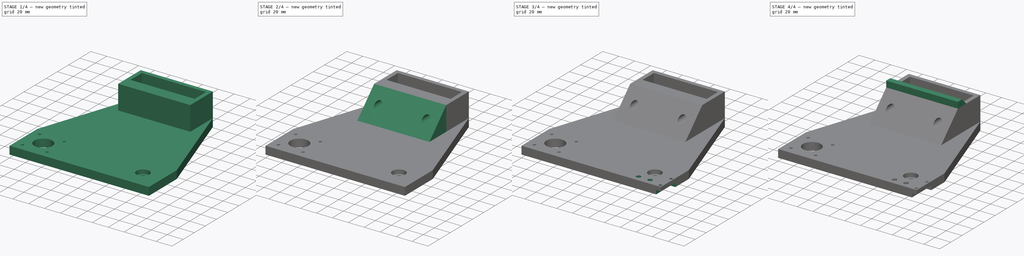
[diagram: build sequence overview — one tinted view per stage of 4, left to right]
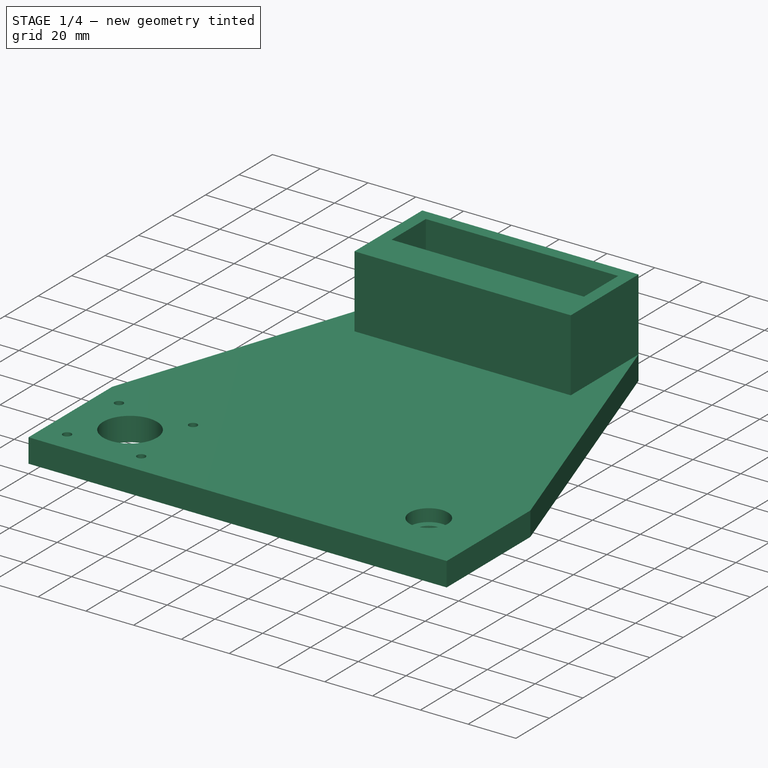
[diagram: stage 1 of 4 — iso view after this stage's code; geometry added in this stage tinted green]
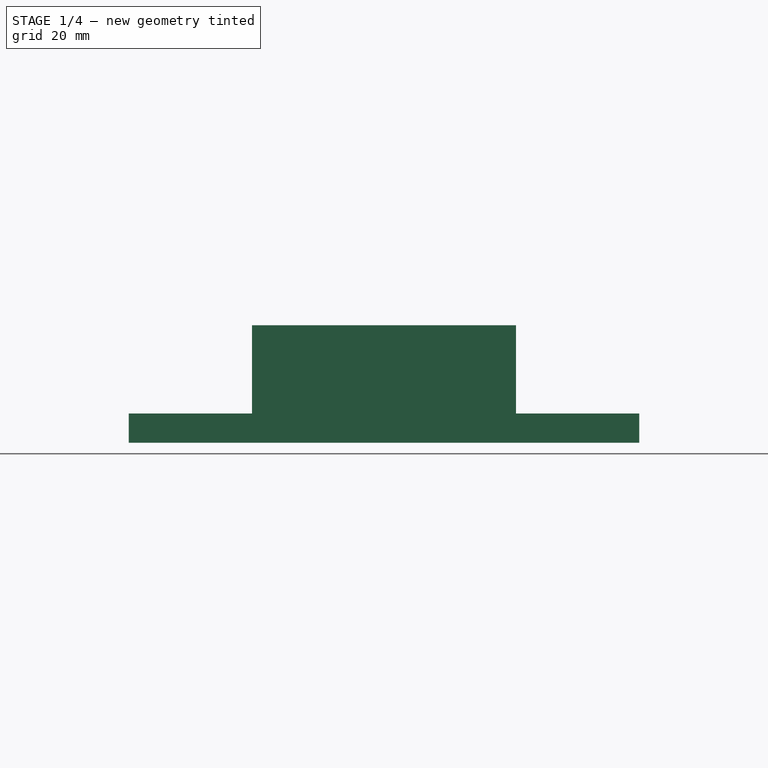
[diagram: stage 1 of 4 — front view after this stage's code; geometry added in this stage tinted green]
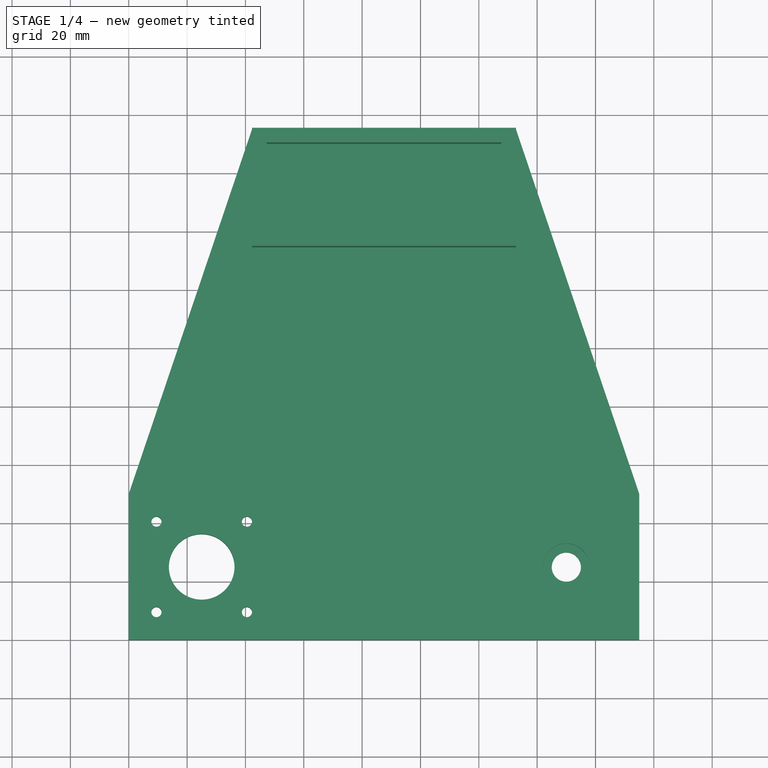
[diagram: stage 1 of 4 — top view after this stage's code; geometry added in this stage tinted green]
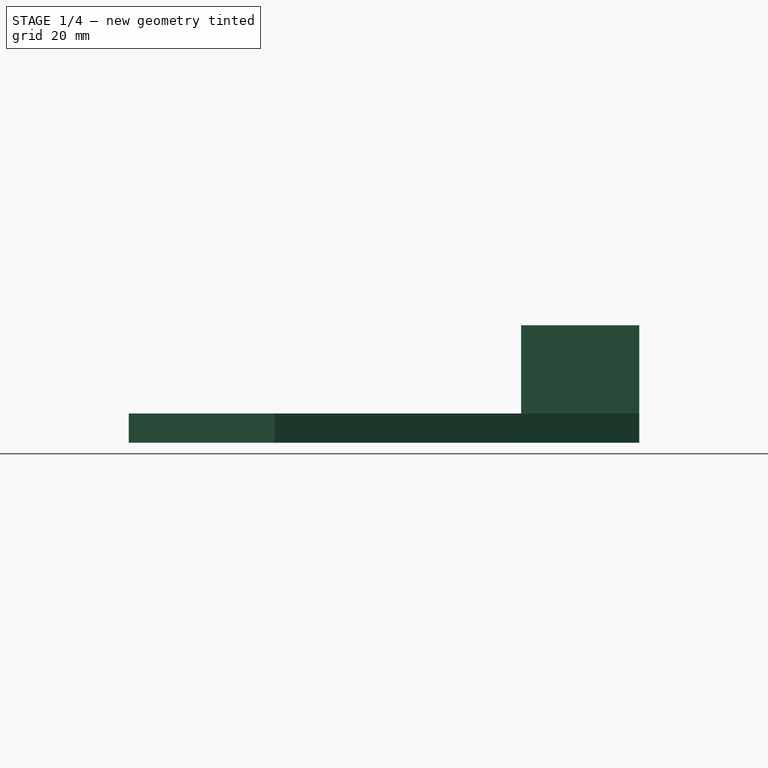
[diagram: stage 1 of 4 — right view after this stage's code; geometry added in this stage tinted green]
FCSTD DOCUMENT  (FreeCAD 0.19R)
Label: y-axis-carriage
License: All rights reserved
LicenseURL: http://en.wikipedia.org/wiki/All_rights_reserved
objects: Sketcher::SketchObject×10, PartDesign::Pocket×7, PartDesign::Pad×3, PartDesign::Chamfer×2, PartDesign::Body×1
note: 35 computed .brp shape members not serialized (recipe doc carries the construction recipe); baked Part::Feature solids carry a one-line shape summary decoded from their .brp

FEATURE [Sketcher::SketchObject] Sketch
  FullyConstrained = true
  MapMode = 5
  Support = -> [XY_Plane]
  sketch-geometry (21):
    g0: LineSegment StartX=0 StartY=0 StartZ=0 EndX=175 EndY=0 EndZ=0
    g1: LineSegment StartX=175 StartY=0 StartZ=0 EndX=175 EndY=50 EndZ=0
    g2: LineSegment StartX=0 StartY=0 StartZ=0 EndX=0 EndY=50 EndZ=0
    g3: LineSegment StartX=0 StartY=50 StartZ=0 EndX=42.25 EndY=175 EndZ=0
    g4: LineSegment StartX=42.25 StartY=175 StartZ=0 EndX=132.75 EndY=175 EndZ=0
    g5: LineSegment StartX=132.75 StartY=175 StartZ=0 EndX=175 EndY=50 EndZ=0
    g6: LineSegment StartX=87.5 StartY=175 StartZ=0 EndX=87.5 EndY=0 EndZ=0
    g7: LineSegment StartX=0 StartY=25 StartZ=0 EndX=175 EndY=25 EndZ=0
    g8: Circle CenterX=25 CenterY=25 CenterZ=0 NormalX=0 NormalY=0 NormalZ=1 AngleXU=0 Radius=11.25
    g9: LineSegment StartX=9.5 StartY=9.5 StartZ=0 EndX=40.5 EndY=9.5 EndZ=0
    g10: LineSegment StartX=40.5 StartY=9.5 StartZ=0 EndX=40.5 EndY=40.5 EndZ=0
    g11: LineSegment StartX=40.5 StartY=40.5 StartZ=0 EndX=9.5 EndY=40.5 EndZ=0
    g12: LineSegment StartX=9.5 StartY=40.5 StartZ=0 EndX=9.5 EndY=9.5 EndZ=0
    g13: LineSegment StartX=25 StartY=40.5 StartZ=0 EndX=25 EndY=9.5 EndZ=0
    g14: GeomPoint X=9.5 Y=25 Z=0
    g15: GeomPoint X=40.5 Y=25 Z=0
    g16: Circle CenterX=9.5 CenterY=40.5 CenterZ=0 NormalX=0 NormalY=0 NormalZ=1 AngleXU=0 Radius=1.75
    g17: Circle CenterX=40.5 CenterY=40.5 CenterZ=0 NormalX=0 NormalY=0 NormalZ=1 AngleXU=0 Radius=1.75
    g18: Circle CenterX=40.5 CenterY=9.5 CenterZ=0 NormalX=0 NormalY=0 NormalZ=1 AngleXU=0 Radius=1.75
    g19: Circle CenterX=9.5 CenterY=9.5 CenterZ=0 NormalX=0 NormalY=0 NormalZ=1 AngleXU=0 Radius=1.75
    g20: Circle CenterX=150 CenterY=25 CenterZ=0 NormalX=0 NormalY=0 NormalZ=1 AngleXU=0 Radius=5
  constraints (54):
    c: Coincident(g0,g-1)
    c: PointOnObject(g0,g-1)
    c: Coincident(g1,g0)
    c: Vertical(g1)
    c: Coincident(g2,g0)
    c: PointOnObject(g2,g-2)
    c: Coincident(g3,g2)
    c: Coincident(g4,g3)
    c: Horizontal(g4)
    c: Coincident(g5,g4)
    c: Coincident(g5,g1)
    c: Vertical(g6)
    c: Symmetric(g0,g0,g6)
    c: Symmetric(g4,g3,g6)
    c: Equal(g2,g1)
    c: DistanceX(g0,g0) = 175
    c: DistanceY(g6,g6) = 175
    c: DistanceY(g2,g2) = 50
    c: DistanceX(g4,g4) = 90.5
    c: PointOnObject(g7,g1)
    c: Horizontal(g7)
    c: Symmetric(g2,g0,g7)
    c: PointOnObject(g8,g7)
    c: Diameter(g8) = 22.5
    c: DistanceX(g7,g8) = 25
    c: Coincident(g9,g10)
    c: Coincident(g10,g11)
    c: Coincident(g11,g12)
    c: Coincident(g12,g9)
    c: Horizontal(g9)
    c: Horizontal(g11)
    c: Vertical(g10)
    c: Vertical(g12)
    c: PointOnObject(g13,g9)
    c: Vertical(g13)
    c: PointOnObject(g15,g10)
    c: PointOnObject(g14,g7)
    c: PointOnObject(g15,g7)
    c: PointOnObject(g8,g13)
    c: Symmetric(g10,g11,g13)
    c: Symmetric(g9,g11,g14)
    c: DistanceX(g11,g11) = 31
    c: DistanceY(g10,g10) = 31
    c: Coincident(g16,g11)
    c: Coincident(g17,g10)
    c: Coincident(g18,g9)
    c: Coincident(g19,g9)
    c: Equal(g16,g17)
    c: Equal(g17,g18)
    c: Equal(g18,g19)
    c: Diameter(g16) = 3.5
    c: PointOnObject(g20,g7)
    c: DistanceX(g20,g7) = 25
    c: Diameter(g20) = 10
FEATURE [PartDesign::Pad] Pad
  Direction = (1,1,1)
  Length = 10
  Length2 = 100
  Profile = -> Sketch
  Type = 0
FEATURE [Sketcher::SketchObject] Sketch001
  FullyConstrained = true
  MapMode = 5
  Placement = pos=(0,0,10) rot=(0,0,1;0rad)
  Support = -> [Pad]
  sketch-geometry (2):
    g0: Circle CenterX=150 CenterY=25 CenterZ=0 NormalX=0 NormalY=0 NormalZ=1 AngleXU=0 Radius=8
    g1: LineSegment StartX=0 StartY=0 StartZ=0 EndX=175 EndY=0 EndZ=0
  constraints (6):
    c: DistanceY(g-1,g0) = 25
    c: Diameter(g0) = 16
    c: Coincident(g1,g-1)
    c: PointOnObject(g1,g-1)
    c: DistanceX(g1,g1) = 175
    c: DistanceX(g0,g1) = 25
FEATURE [PartDesign::Pocket] Pocket
  BaseFeature = -> Pad
  Length = 5.25
  Length2 = 100
  Profile = -> Sketch001
  Type = 0
FEATURE [Sketcher::SketchObject] Sketch002
  FullyConstrained = true
  MapMode = 5
  Placement = pos=(0,0,10) rot=(0,0,1;0rad)
  Support = -> [Pocket]
  sketch-geometry (10):
    g0: LineSegment StartX=42.25 StartY=175 StartZ=0 EndX=132.75 EndY=175 EndZ=0
    g1: LineSegment StartX=132.75 StartY=175 StartZ=0 EndX=132.75 EndY=134.5 EndZ=0
    g2: LineSegment StartX=132.75 StartY=134.5 StartZ=0 EndX=42.25 EndY=134.5 EndZ=0
    g3: LineSegment StartX=42.25 StartY=134.5 StartZ=0 EndX=42.25 EndY=175 EndZ=0
    g4: LineSegment StartX=47.25 StartY=170 StartZ=0 EndX=127.75 EndY=170 EndZ=0
    g5: LineSegment StartX=127.75 StartY=170 StartZ=0 EndX=127.75 EndY=149.5 EndZ=0
    g6: LineSegment StartX=127.75 StartY=149.5 StartZ=0 EndX=47.25 EndY=149.5 EndZ=0
    g7: LineSegment StartX=47.25 StartY=149.5 StartZ=0 EndX=47.25 EndY=170 EndZ=0
    g8: LineSegment StartX=0 StartY=0 StartZ=0 EndX=175 EndY=0 EndZ=0
    g9: LineSegment StartX=87.5 StartY=134.5 StartZ=0 EndX=87.5 EndY=0 EndZ=0
  constraints (29):
    c: Coincident(g0,g1)
    c: Coincident(g1,g2)
    c: Coincident(g2,g3)
    c: Coincident(g3,g0)
    c: Horizontal(g0)
    c: Horizontal(g2)
    c: Vertical(g1)
    c: Vertical(g3)
    c: DistanceY(g-1,g0) = 175
    c: Coincident(g4,g5)
    c: Coincident(g5,g6)
    c: Coincident(g6,g7)
    c: Coincident(g7,g4)
    c: Horizontal(g4)
    c: Horizontal(g6)
    c: Vertical(g5)
    c: Vertical(g7)
    c: DistanceX(g0,g4) = 5
    c: DistanceX(g4,g0) = 5
    c: DistanceY(g4,g0) = 5
    c: DistanceY(g1,g5) = 15
    c: Coincident(g8,g-1)
    c: PointOnObject(g8,g-1)
    c: DistanceX(g8,g8) = 175
    c: Vertical(g9)
    c: Symmetric(g8,g8,g9)
    c: Symmetric(g1,g2,g9)
    c: DistanceX(g4,g4) = 80.5
    c: DistanceY(g5,g5) = 20.5
FEATURE [PartDesign::Pad] Pad001
  BaseFeature = -> Pocket
  Direction = (1,1,1)
  Length = 30.25
  Length2 = 100
  Profile = -> Sketch002
  Type = 0
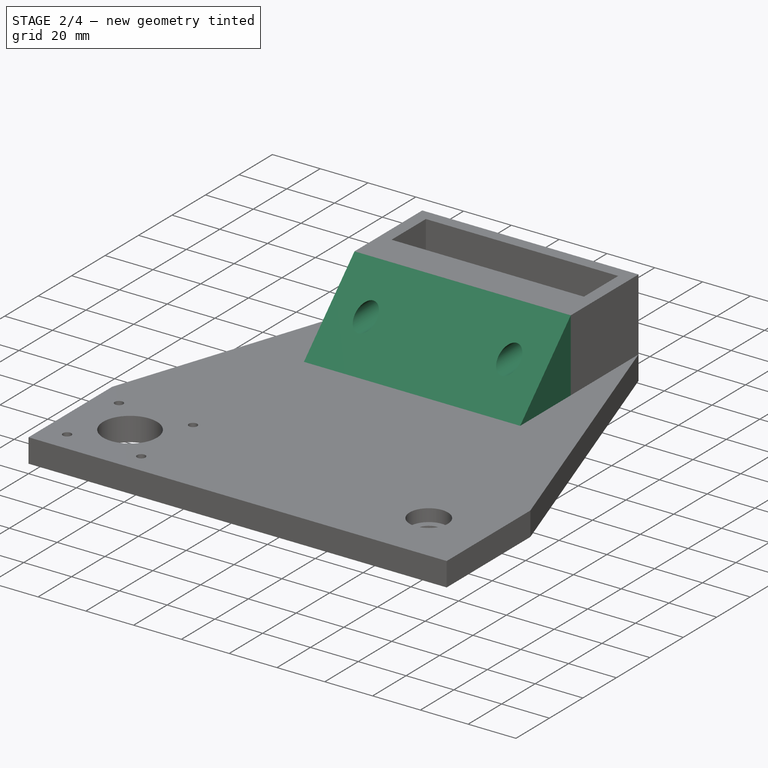
[diagram: stage 2 of 4 — iso view after this stage's code; geometry added in this stage tinted green]
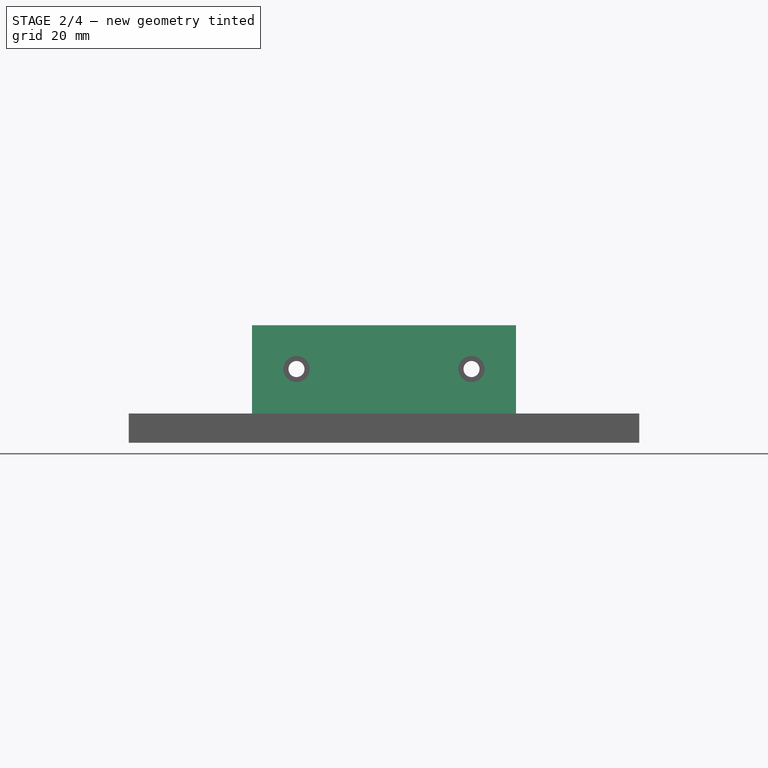
[diagram: stage 2 of 4 — front view after this stage's code; geometry added in this stage tinted green]
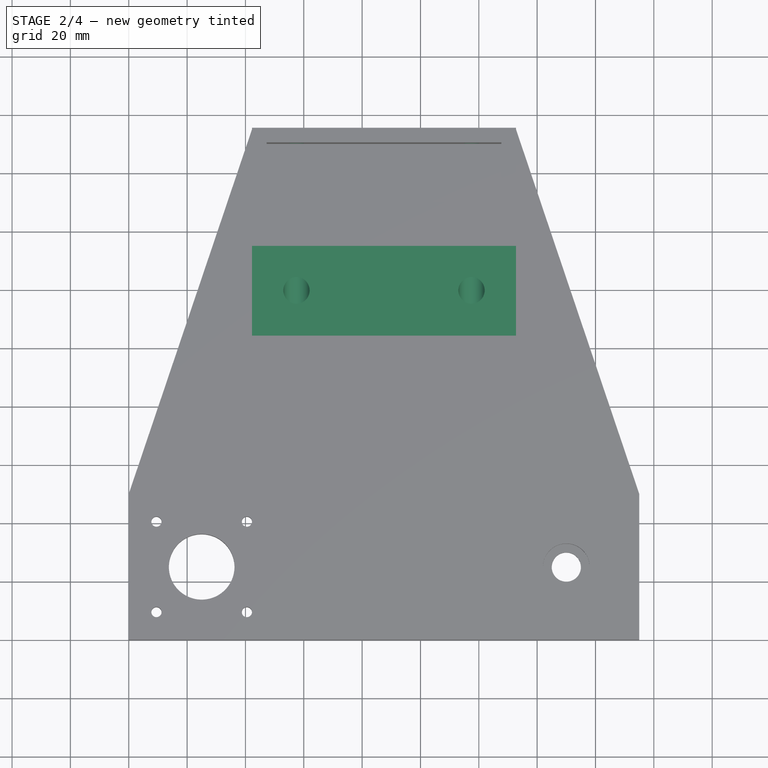
[diagram: stage 2 of 4 — top view after this stage's code; geometry added in this stage tinted green]
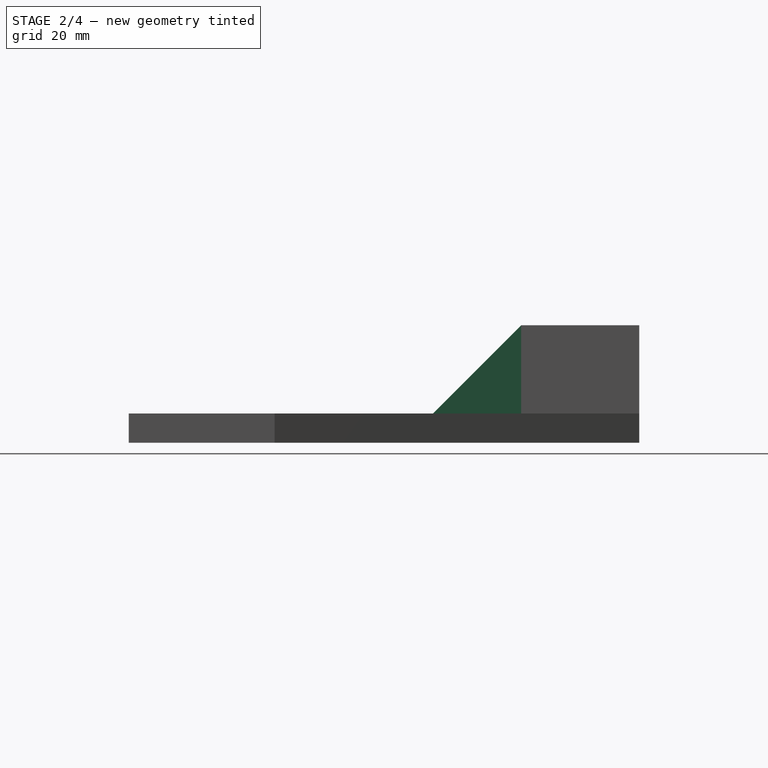
[diagram: stage 2 of 4 — right view after this stage's code; geometry added in this stage tinted green]
FEATURE [PartDesign::Chamfer] Chamfer
  Angle = 45
  Base = -> Pad001 [Edge22]
  BaseFeature = -> Pad001
  ChamferType = 2
  FlipDirection = false
  Size = 30.24
  Size2 = 1
  SupportTransform = false
FEATURE [Sketcher::SketchObject] Sketch003
  FullyConstrained = true
  MapMode = 5
  Placement = pos=(0,175,0) rot=(0,0.707107,0.707107;3.14159rad)
  Support = -> [Chamfer]
  sketch-geometry (9):
    g0: Circle CenterX=-117.5 CenterY=25.25 CenterZ=0 NormalX=0 NormalY=0 NormalZ=1 AngleXU=0 Radius=2.75
    g1: Circle CenterX=-57.5 CenterY=25.25 CenterZ=0 NormalX=0 NormalY=0 NormalZ=1 AngleXU=0 Radius=2.75
    g2: LineSegment StartX=-132.75 StartY=40.25 StartZ=0 EndX=-42.25 EndY=40.25 EndZ=0
    g3: LineSegment StartX=-42.25 StartY=40.25 StartZ=0 EndX=-42.25 EndY=10 EndZ=0
    g4: LineSegment StartX=-42.25 StartY=10 StartZ=0 EndX=-132.75 EndY=10 EndZ=0
    g5: LineSegment StartX=-132.75 StartY=10 StartZ=0 EndX=-132.75 EndY=40.25 EndZ=0
    g6: LineSegment StartX=0 StartY=0 StartZ=0 EndX=-175 EndY=0 EndZ=0
    g7: LineSegment StartX=-87.5 StartY=10 StartZ=0 EndX=-87.5 EndY=0 EndZ=0
    g8: LineSegment StartX=-132.75 StartY=25.25 StartZ=0 EndX=-42.25 EndY=25.25 EndZ=0
  constraints (27):
    c: Coincident(g2,g3)
    c: Coincident(g3,g4)
    c: Coincident(g4,g5)
    c: Coincident(g5,g2)
    c: Horizontal(g2)
    c: Horizontal(g4)
    c: Vertical(g3)
    c: Vertical(g5)
    c: Coincident(g6,g-1)
    c: Horizontal(g6)
    c: DistanceX(g6,g6) = 175
    c: Vertical(g7)
    c: Symmetric(g4,g3,g7)
    c: DistanceX(g2,g2) = 90.5
    c: DistanceY(g7,g7) = 10
    c: Symmetric(g6,g-1,g7)
    c: PointOnObject(g8,g3)
    c: Horizontal(g8)
    c: PointOnObject(g0,g8)
    c: PointOnObject(g1,g8)
    c: Diameter(g0) = 5.5
    c: Equal(g0,g1)
    c: DistanceX(g8,g0) = 15.25
    c: DistanceX(g1,g8) = 15.25
    c: DistanceY(g8,g2) = 15
    c: DistanceY(g3,g2) = 30.25
    c: PointOnObject(g8,g5)
FEATURE [PartDesign::Pocket] Pocket001
  BaseFeature = -> Chamfer
  Length = 0
  Length2 = 100
  Profile = -> Sketch003
  Type = 1
FEATURE [Sketcher::SketchObject] Sketch004
  FullyConstrained = true
  MapMode = 5
  Placement = pos=(0,134.5,0) rot=(1,0,0;1.5708rad)
  Support = -> [Pad001]
  sketch-geometry (9):
    g0: LineSegment StartX=0 StartY=0 StartZ=0 EndX=175 EndY=0 EndZ=0
    g1: LineSegment StartX=42.25 StartY=40.25 StartZ=0 EndX=132.75 EndY=40.25 EndZ=0
    g2: LineSegment StartX=132.75 StartY=40.25 StartZ=0 EndX=132.75 EndY=10 EndZ=0
    g3: LineSegment StartX=132.75 StartY=10 StartZ=0 EndX=42.25 EndY=10 EndZ=0
    g4: LineSegment StartX=42.25 StartY=10 StartZ=0 EndX=42.25 EndY=40.25 EndZ=0
    g5: LineSegment StartX=87.5 StartY=10 StartZ=0 EndX=87.5 EndY=0 EndZ=0
    g6: LineSegment StartX=42.25 StartY=25.25 StartZ=0 EndX=132.75 EndY=25.25 EndZ=0
    g7: Circle CenterX=57.5 CenterY=25.25 CenterZ=0 NormalX=0 NormalY=0 NormalZ=1 AngleXU=0 Radius=4.5
    g8: Circle CenterX=117.5 CenterY=25.25 CenterZ=0 NormalX=0 NormalY=0 NormalZ=1 AngleXU=0 Radius=4.5
  constraints (27):
    c: Coincident(g0,g-1)
    c: Horizontal(g0)
    c: Coincident(g1,g2)
    c: Coincident(g2,g3)
    c: Coincident(g3,g4)
    c: Coincident(g4,g1)
    c: Horizontal(g1)
    c: Horizontal(g3)
    c: Vertical(g2)
    c: Vertical(g4)
    c: Vertical(g5)
    c: DistanceX(g0,g0) = 175
    c: PointOnObject(g6,g2)
    c: Horizontal(g6)
    c: DistanceY(g5,g5) = 10
    c: DistanceX(g1,g1) = 90.5
    c: DistanceY(g2,g2) = 30.25
    c: Symmetric(g-1,g0,g5)
    c: Symmetric(g2,g3,g5)
    c: PointOnObject(g7,g6)
    c: PointOnObject(g8,g6)
    c: DistanceX(g6,g7) = 15.25
    c: DistanceX(g8,g6) = 15.25
    c: Diameter(g7) = 9
    c: Equal(g7,g8)
    c: DistanceY(g6,g1) = 15
    c: PointOnObject(g6,g4)
FEATURE [PartDesign::Pocket] Pocket002
  BaseFeature = -> Pocket001
  Length = 5
  Length2 = 100
  Profile = -> Sketch004
  Reversed = true
  Type = 2
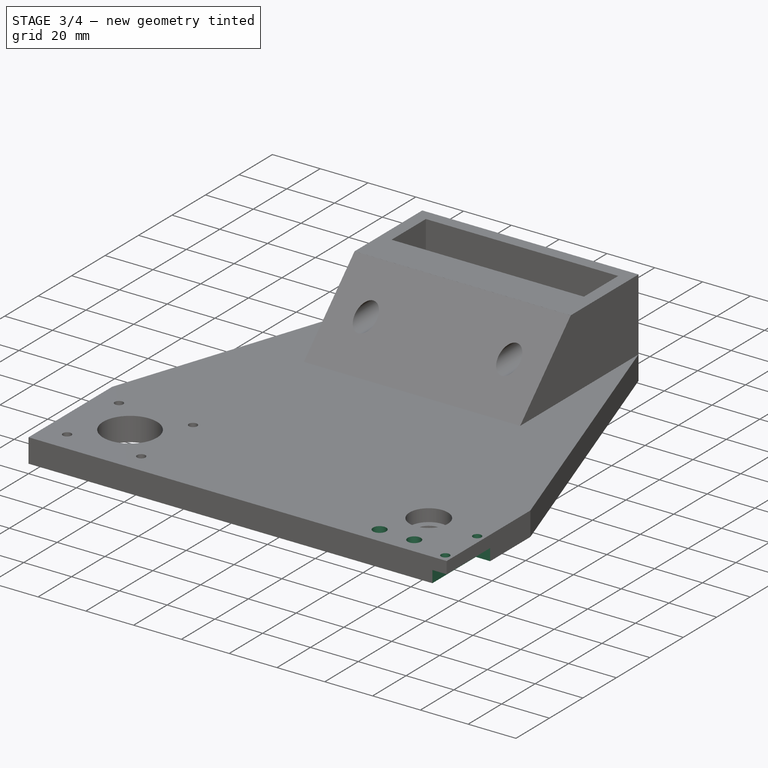
[diagram: stage 3 of 4 — iso view after this stage's code; geometry added in this stage tinted green]
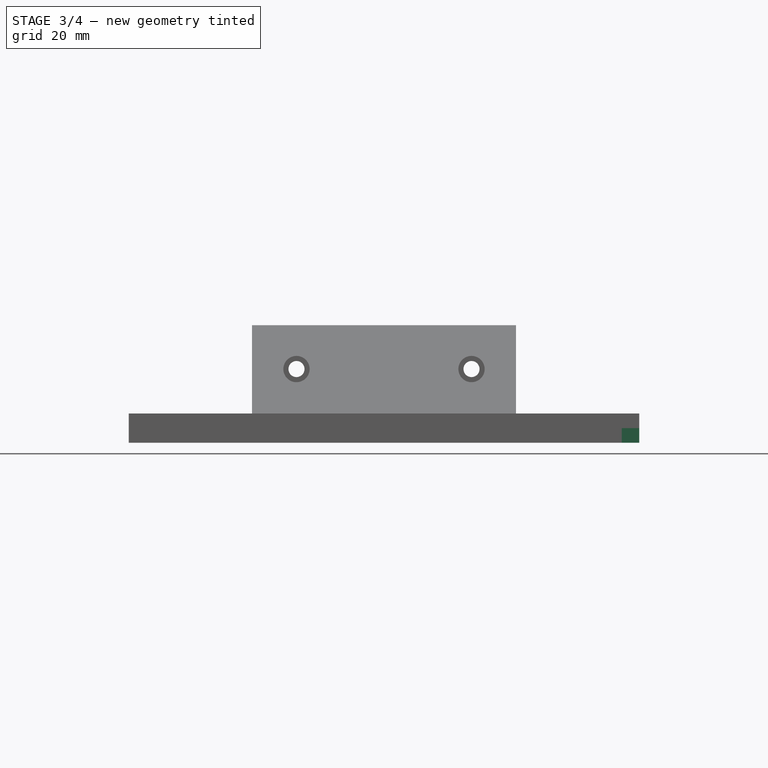
[diagram: stage 3 of 4 — front view after this stage's code; geometry added in this stage tinted green]
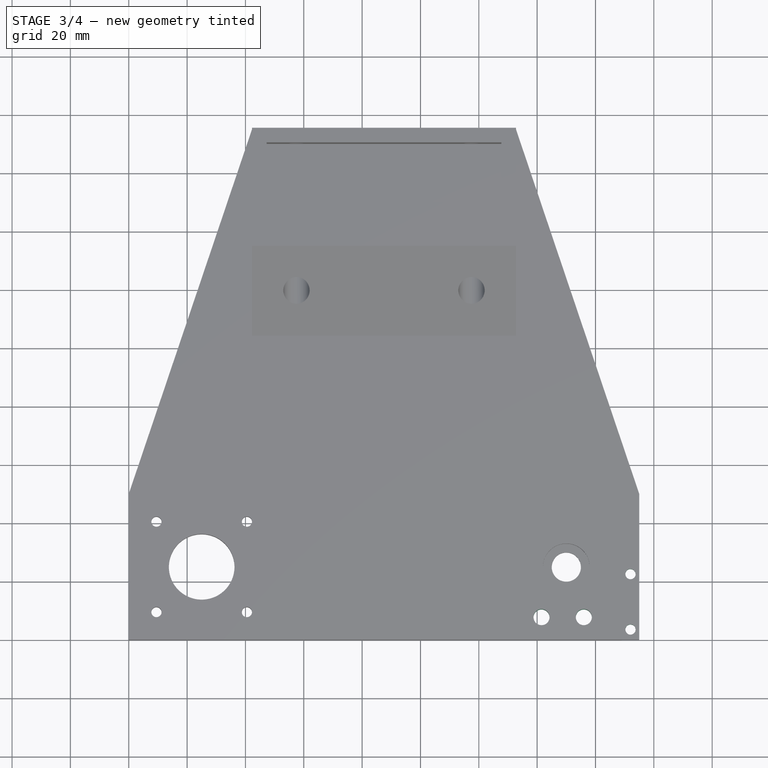
[diagram: stage 3 of 4 — top view after this stage's code; geometry added in this stage tinted green]
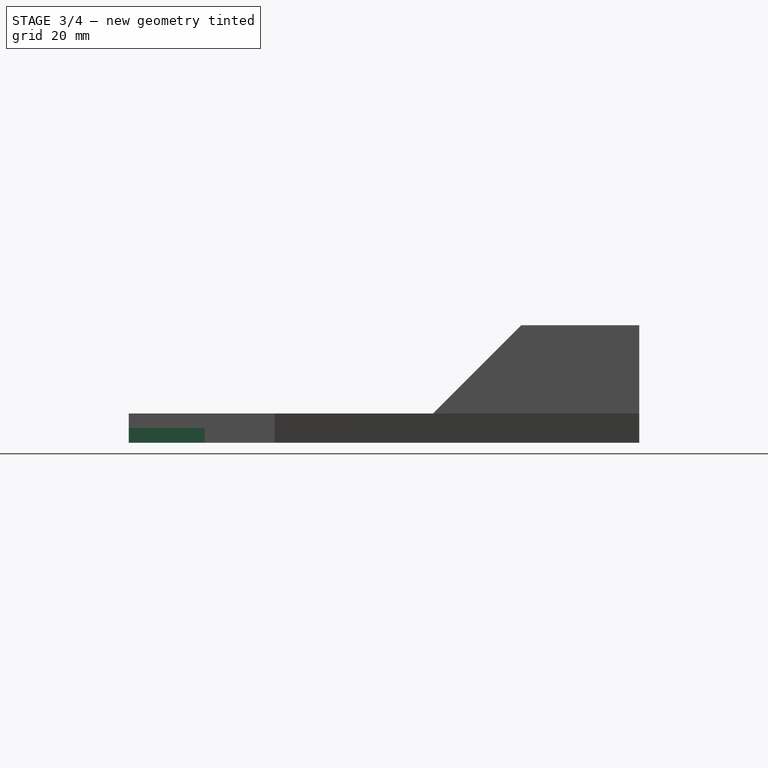
[diagram: stage 3 of 4 — right view after this stage's code; geometry added in this stage tinted green]
FEATURE [Sketcher::SketchObject] Sketch005
  FullyConstrained = true
  MapMode = 5
  Placement = pos=(0,0,10) rot=(0,0,1;0rad)
  Support = -> [Pocket002]
  sketch-geometry (7):
    g0: LineSegment StartX=0 StartY=0 StartZ=0 EndX=175 EndY=0 EndZ=0
    g1: LineSegment StartX=175 StartY=0 StartZ=0 EndX=175 EndY=50 EndZ=0
    g2: LineSegment StartX=175 StartY=50 StartZ=0 EndX=0 EndY=50 EndZ=0
    g3: LineSegment StartX=0 StartY=50 StartZ=0 EndX=0 EndY=0 EndZ=0
    g4: LineSegment StartX=172 StartY=0 StartZ=0 EndX=172 EndY=50 EndZ=0
    g5: Circle CenterX=172 CenterY=3.5 CenterZ=0 NormalX=0 NormalY=0 NormalZ=1 AngleXU=0 Radius=1.75
    g6: Circle CenterX=172 CenterY=22.5 CenterZ=0 NormalX=0 NormalY=0 NormalZ=1 AngleXU=0 Radius=1.75
  constraints (21):
    c: Coincident(g0,g1)
    c: Coincident(g1,g2)
    c: Coincident(g2,g3)
    c: Coincident(g3,g0)
    c: Horizontal(g0)
    c: Horizontal(g2)
    c: Vertical(g1)
    c: Vertical(g3)
    c: Coincident(g0,g-1)
    c: PointOnObject(g4,g0)
    c: PointOnObject(g4,g2)
    c: Vertical(g4)
    c: DistanceX(g2,g2) = 175
    c: DistanceY(g1,g1) = 50
    c: DistanceX(g4,g0) = 3
    c: PointOnObject(g5,g4)
    c: PointOnObject(g6,g4)
    c: Equal(g5,g6)
    c: Diameter(g5) = 3.5
    c: DistanceY(g4,g5) = 3.5
    c: DistanceY(g5,g6) = 19
FEATURE [PartDesign::Pocket] Pocket003
  BaseFeature = -> Pocket002
  Length = 5
  Length2 = 100
  Profile = -> Sketch005
  Type = 1
FEATURE [Sketcher::SketchObject] Sketch006
  AttachmentOffset = pos=(0,0,-5) rot=(0,0,1;0rad)
  FullyConstrained = true
  MapMode = 5
  Placement = pos=(0,0,5) rot=(0,0,1;0rad)
  Support = -> [Pocket003]
  sketch-geometry (8):
    g0: LineSegment StartX=0 StartY=0 StartZ=0 EndX=175 EndY=0 EndZ=0
    g1: LineSegment StartX=175 StartY=0 StartZ=0 EndX=175 EndY=50 EndZ=0
    g2: LineSegment StartX=175 StartY=50 StartZ=0 EndX=0 EndY=50 EndZ=0
    g3: LineSegment StartX=0 StartY=50 StartZ=0 EndX=0 EndY=0 EndZ=0
    g4: LineSegment StartX=175 StartY=0 StartZ=0 EndX=169 EndY=0 EndZ=0
    g5: LineSegment StartX=169 StartY=0 StartZ=0 EndX=169 EndY=26 EndZ=0
    g6: LineSegment StartX=169 StartY=26 StartZ=0 EndX=175 EndY=26 EndZ=0
    g7: LineSegment StartX=175 StartY=26 StartZ=0 EndX=175 EndY=0 EndZ=0
  constraints (22):
    c: Coincident(g0,g1)
    c: Coincident(g1,g2)
    c: Coincident(g2,g3)
    c: Coincident(g3,g0)
    c: Horizontal(g0)
    c: Horizontal(g2)
    c: Vertical(g1)
    c: Vertical(g3)
    c: Coincident(g0,g-1)
    c: DistanceX(g2,g2) = 175
    c: DistanceY(g1,g1) = 50
    c: Coincident(g4,g5)
    c: Coincident(g5,g6)
    c: Coincident(g6,g7)
    c: Coincident(g7,g4)
    c: Horizontal(g4)
    c: Horizontal(g6)
    c: Vertical(g5)
    c: Vertical(g7)
    c: Coincident(g4,g0)
    c: DistanceX(g6,g6) = 6
    c: DistanceY(g5,g5) = 26
FEATURE [PartDesign::Pocket] Pocket004
  BaseFeature = -> Pocket003
  Length = 5
  Length2 = 100
  Profile = -> Sketch006
  Type = 0
FEATURE [Sketcher::SketchObject] Sketch007
  FullyConstrained = true
  MapMode = 5
  Placement = pos=(0,0,10) rot=(0,0,1;0rad)
  Support = -> [Pocket004]
  sketch-geometry (8):
    g0: LineSegment StartX=0 StartY=0 StartZ=0 EndX=175 EndY=0 EndZ=0
    g1: LineSegment StartX=163.25 StartY=0 StartZ=0 EndX=134.25 EndY=0 EndZ=0
    g2: LineSegment StartX=134.25 StartY=0 StartZ=0 EndX=134.25 EndY=7.75 EndZ=0
    g3: LineSegment StartX=134.25 StartY=7.75 StartZ=0 EndX=163.25 EndY=7.75 EndZ=0
    g4: LineSegment StartX=163.25 StartY=7.75 StartZ=0 EndX=163.25 EndY=0 EndZ=0
    g5: GeomPoint X=148.75 Y=7.75 Z=0
    g6: Circle CenterX=156 CenterY=7.75 CenterZ=0 NormalX=0 NormalY=0 NormalZ=1 AngleXU=0 Radius=2.75
    g7: Circle CenterX=141.5 CenterY=7.75 CenterZ=0 NormalX=0 NormalY=0 NormalZ=1 AngleXU=0 Radius=2.75
  constraints (20):
    c: Coincident(g0,g-1)
    c: Horizontal(g0)
    c: DistanceX(g0,g0) = 175
    c: Coincident(g1,g2)
    c: Coincident(g2,g3)
    c: Coincident(g3,g4)
    c: Coincident(g4,g1)
    c: Horizontal(g1)
    c: Horizontal(g3)
    c: Vertical(g2)
    c: Vertical(g4)
    c: PointOnObject(g1,g0)
    c: DistanceX(g1,g0) = 11.75
    c: DistanceX(g3,g3) = 29
    c: DistanceY(g4,g4) = 7.75
    c: Symmetric(g3,g2,g5)
    c: Symmetric(g3,g5,g6)
    c: Symmetric(g5,g2,g7)
    c: Equal(g7,g6)
    c: Diameter(g6) = 5.5
FEATURE [PartDesign::Pocket] Pocket005
  BaseFeature = -> Pocket004
  Length = 5
  Length2 = 100
  Profile = -> Sketch007
  Type = 1
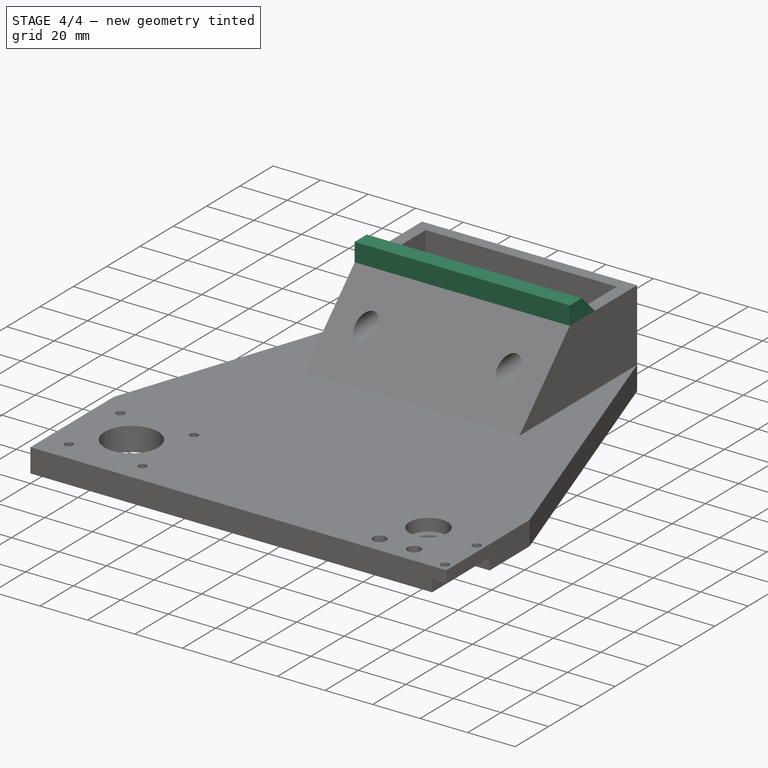
[diagram: stage 4 of 4 — iso view after this stage's code; geometry added in this stage tinted green]
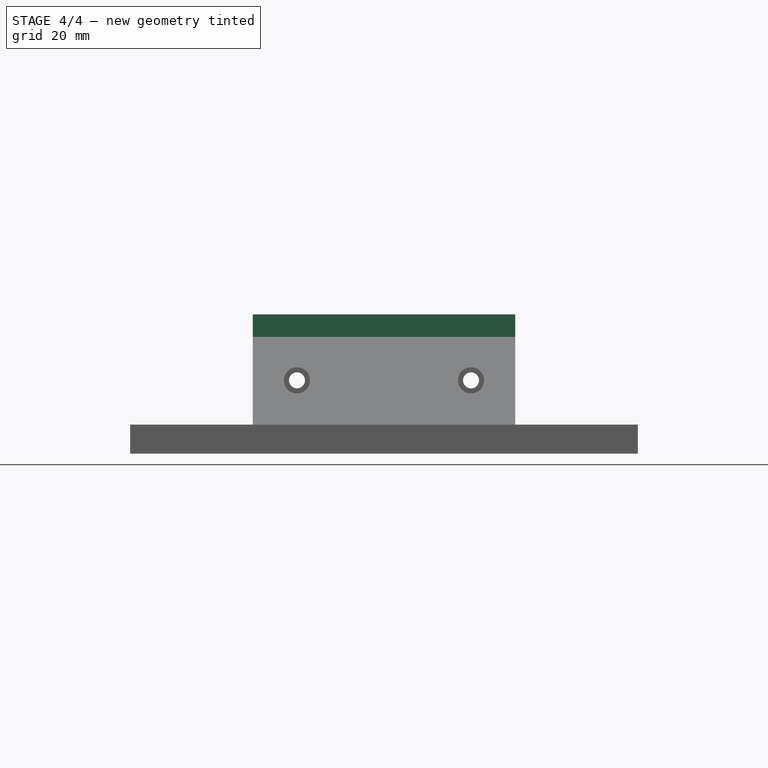
[diagram: stage 4 of 4 — front view after this stage's code; geometry added in this stage tinted green]
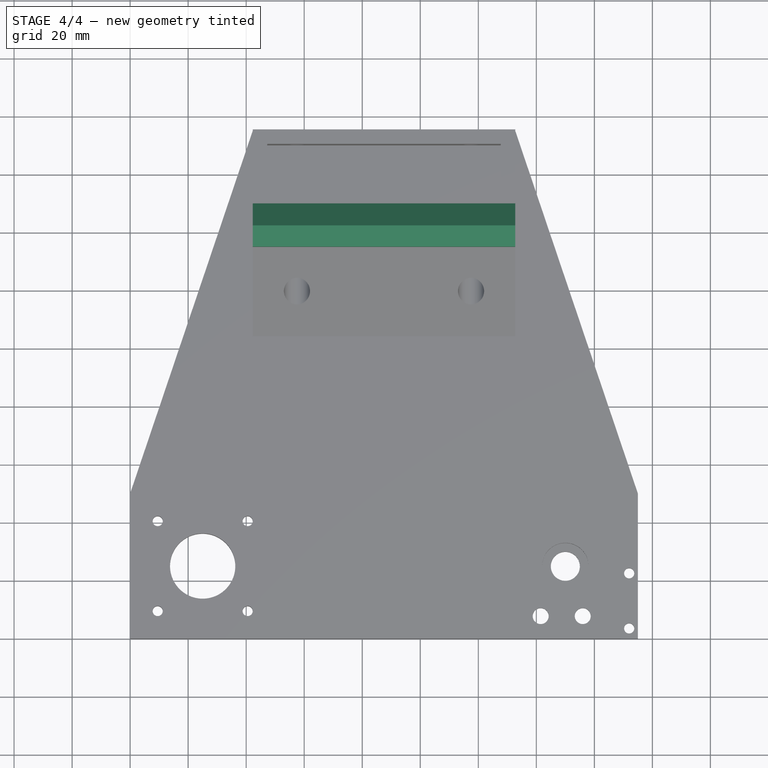
[diagram: stage 4 of 4 — top view after this stage's code; geometry added in this stage tinted green]
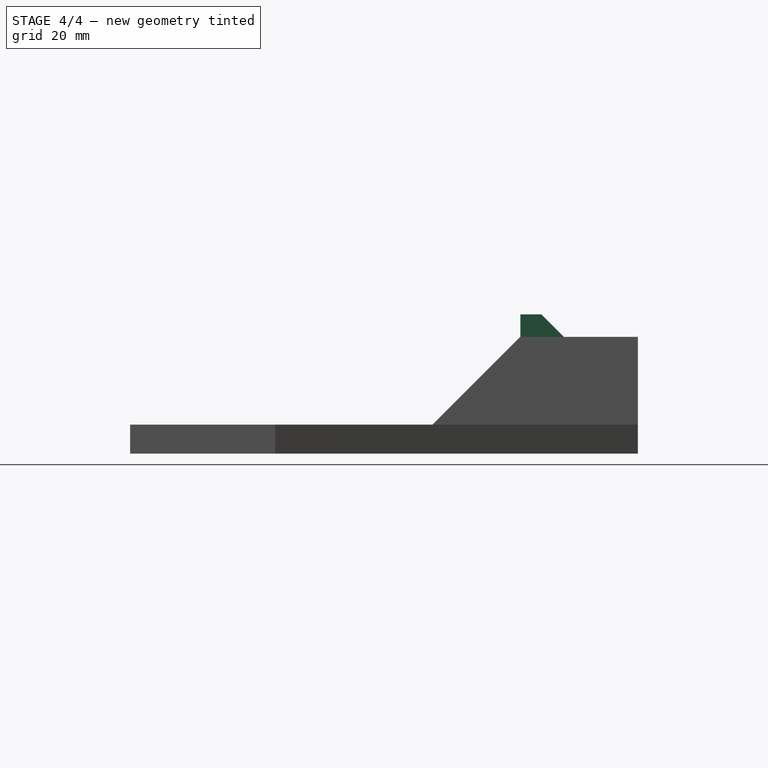
[diagram: stage 4 of 4 — right view after this stage's code; geometry added in this stage tinted green]
FEATURE [Sketcher::SketchObject] Sketch008
  AttachmentOffset = pos=(0,0,-5) rot=(0,0,1;0rad)
  FullyConstrained = true
  MapMode = 5
  Placement = pos=(0,0,5) rot=(0,0,1;0rad)
  Support = -> [Pocket005]
  sketch-geometry (8):
    g0: LineSegment StartX=0 StartY=0 StartZ=0 EndX=175 EndY=0 EndZ=0
    g1: LineSegment StartX=163.25 StartY=0 StartZ=0 EndX=134.25 EndY=0 EndZ=0
    g2: LineSegment StartX=134.25 StartY=0 StartZ=0 EndX=134.25 EndY=7.75 EndZ=0
    g3: LineSegment StartX=134.25 StartY=7.75 StartZ=0 EndX=163.25 EndY=7.75 EndZ=0
    g4: LineSegment StartX=163.25 StartY=7.75 StartZ=0 EndX=163.25 EndY=0 EndZ=0
    g5: GeomPoint X=148.75 Y=7.75 Z=0
    g6: Circle CenterX=141.5 CenterY=7.75 CenterZ=0 NormalX=0 NormalY=0 NormalZ=1 AngleXU=0 Radius=4.5
    g7: Circle CenterX=156 CenterY=7.75 CenterZ=0 NormalX=0 NormalY=0 NormalZ=1 AngleXU=0 Radius=4.5
  constraints (20):
    c: Coincident(g0,g-1)
    c: Horizontal(g0)
    c: DistanceX(g0,g0) = 175
    c: Coincident(g1,g2)
    c: Coincident(g2,g3)
    c: Coincident(g3,g4)
    c: Coincident(g4,g1)
    c: Horizontal(g1)
    c: Horizontal(g3)
    c: Vertical(g2)
    c: Vertical(g4)
    c: PointOnObject(g1,g0)
    c: DistanceX(g1,g0) = 11.75
    c: DistanceX(g3,g3) = 29
    c: DistanceY(g4,g4) = 7.75
    c: Symmetric(g3,g2,g5)
    c: Symmetric(g3,g5,g7)
    c: Symmetric(g5,g2,g6)
    c: Equal(g6,g7)
    c: Diameter(g6) = 9
FEATURE [PartDesign::Pocket] Pocket006
  BaseFeature = -> Pocket005
  Length = 5
  Length2 = 100
  Profile = -> Sketch008
  Type = 1
FEATURE [Sketcher::SketchObject] Sketch009
  FullyConstrained = true
  MapMode = 5
  Placement = pos=(0,0,40.25) rot=(0,0,1;0rad)
  Support = -> [Pocket006]
  sketch-geometry (4):
    g0: LineSegment StartX=42.25 StartY=134.5 StartZ=0 EndX=132.75 EndY=134.5 EndZ=0
    g1: LineSegment StartX=132.75 StartY=134.5 StartZ=0 EndX=132.75 EndY=149.5 EndZ=0
    g2: LineSegment StartX=132.75 StartY=149.5 StartZ=0 EndX=42.25 EndY=149.5 EndZ=0
    g3: LineSegment StartX=42.25 StartY=149.5 StartZ=0 EndX=42.25 EndY=134.5 EndZ=0
  constraints (12):
    c: Coincident(g0,g1)
    c: Coincident(g1,g2)
    c: Coincident(g2,g3)
    c: Coincident(g3,g0)
    c: Horizontal(g0)
    c: Horizontal(g2)
    c: Vertical(g1)
    c: Vertical(g3)
    c: DistanceX(g2,g2) = 90.5
    c: DistanceY(g1,g1) = 15
    c: DistanceX(g-1,g0) = 42.25
    c: DistanceY(g-1,g0) = 134.5
FEATURE [PartDesign::Pad] Pad002
  BaseFeature = -> Pocket006
  Direction = (1,1,1)
  Length = 7.75
  Length2 = 100
  Profile = -> Sketch009
  Type = 0
FEATURE [PartDesign::Chamfer] Chamfer001
  Angle = 45
  Base = -> Pad002 [Edge103]
  BaseFeature = -> Pad002
  ChamferType = 0
  FlipDirection = false
  Size = 7.74
  Size2 = 1
  SupportTransform = false
FEATURE [PartDesign::Body] Body
  Group = -> [Sketch,Pad,Sketch001,Pocket,Sketch002,Pad001,Chamfer,Sketch003,Pocket001,Sketch004,Pocket002,Sketch005,Pocket003,Sketch006,Pocket004,Sketch007,Pocket005,Sketch008,Pocket006,Sketch009,Pad002,Chamfer001]
  Origin = -> Origin
  Tip = -> Chamfer001
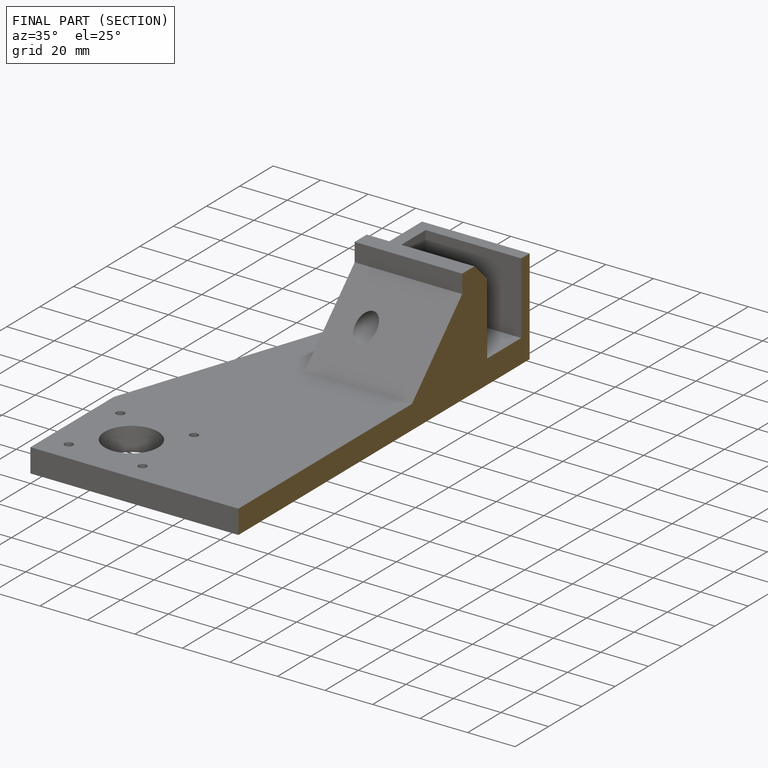
[diagram: finished part — half-section view (interior)]
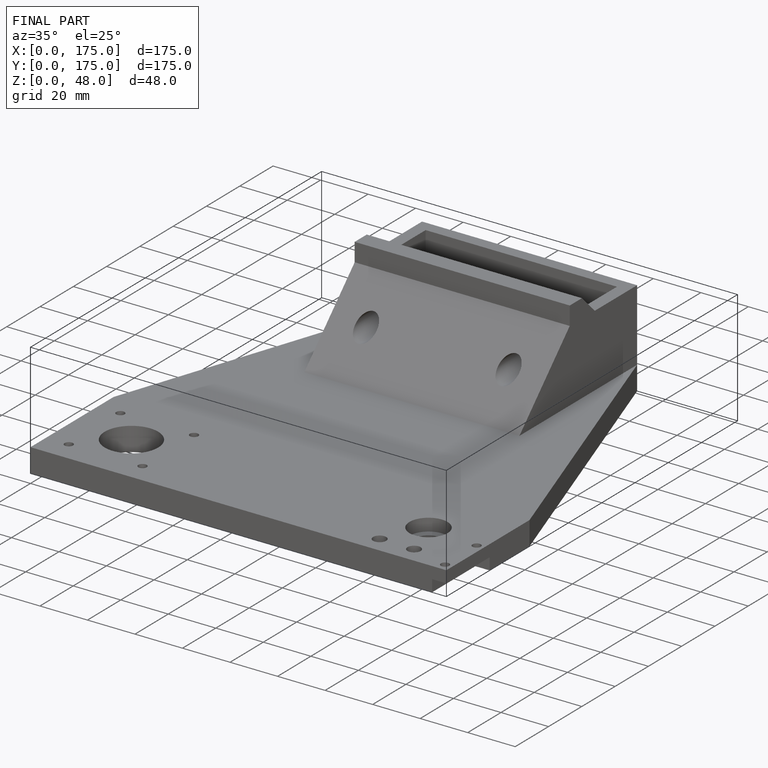
[diagram: finished part — iso view with bounding-box wireframe]
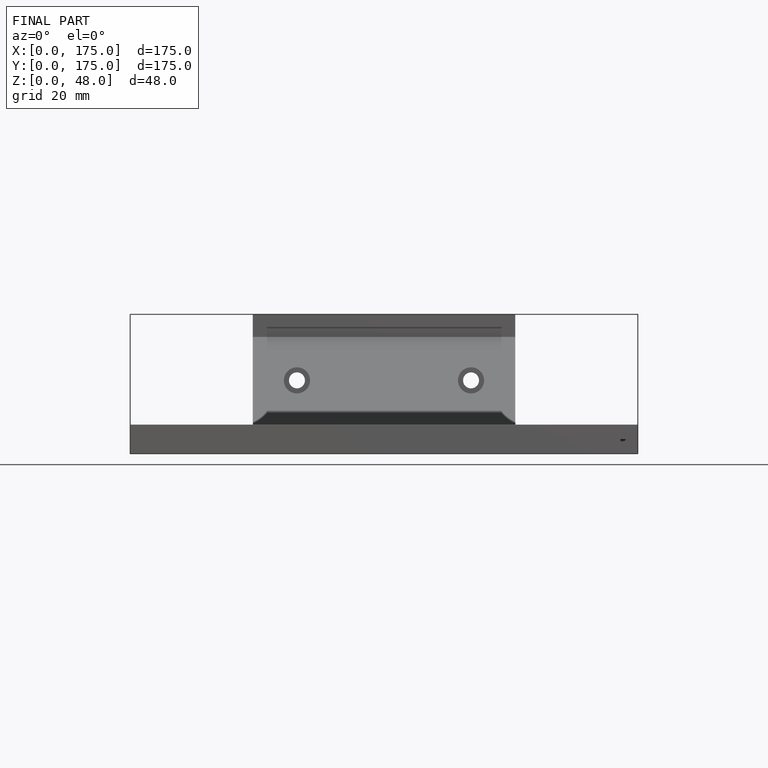
[diagram: finished part — front view with bounding-box wireframe]
